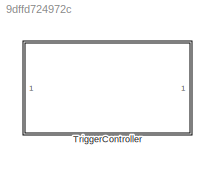
MODEL slx_9dffd724972c
KIND library
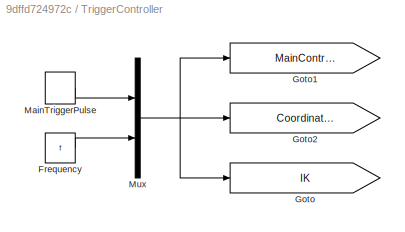
BLOCK [SubSystem] TriggerController
  Ports = []
  RequestExecContextInheritance = off
BLOCK [Constant] TriggerController/Frequency
  SampleTime = 0.0125
  Value = f
BLOCK [Goto] TriggerController/Goto
  GotoTag = IK
  TagVisibility = global
BLOCK [Goto] TriggerController/Goto1
  GotoTag = MainController
  TagVisibility = global
BLOCK [Goto] TriggerController/Goto2
  GotoTag = CoordinateTransform
  TagVisibility = global
BLOCK [DiscretePulseGenerator] TriggerController/MainTriggerPulse
  Period = 1/f
  Ports = [0, 1]
  PulseType = Time based
  PulseWidth = 50
BLOCK [Mux] TriggerController/Mux
  DisplayOption = bar
  Inputs = 2
  Ports = [2, 1]
LINE TriggerController/Frequency:1 -> TriggerController/Mux:2
LINE TriggerController/MainTriggerPulse:1 -> TriggerController/Mux:1
NET TriggerController/Mux:1 -> TriggerController/Goto1:1, TriggerController/Goto2:1, TriggerController/Goto:1
note: NET lines group one-source signal fan-out (src -> all destinations, sorted); 1:1 wires keep LINE
